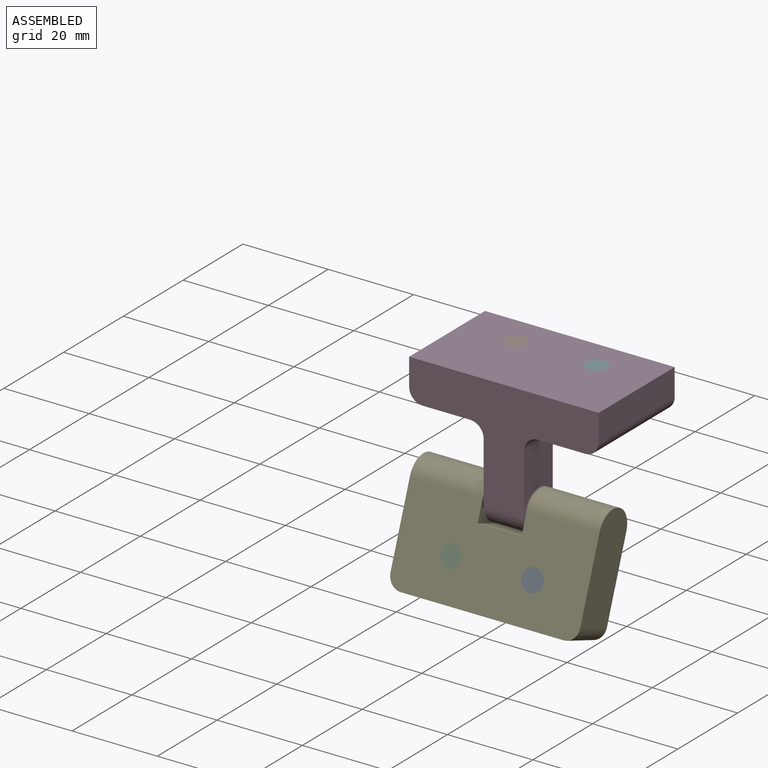
[diagram: assembled view]
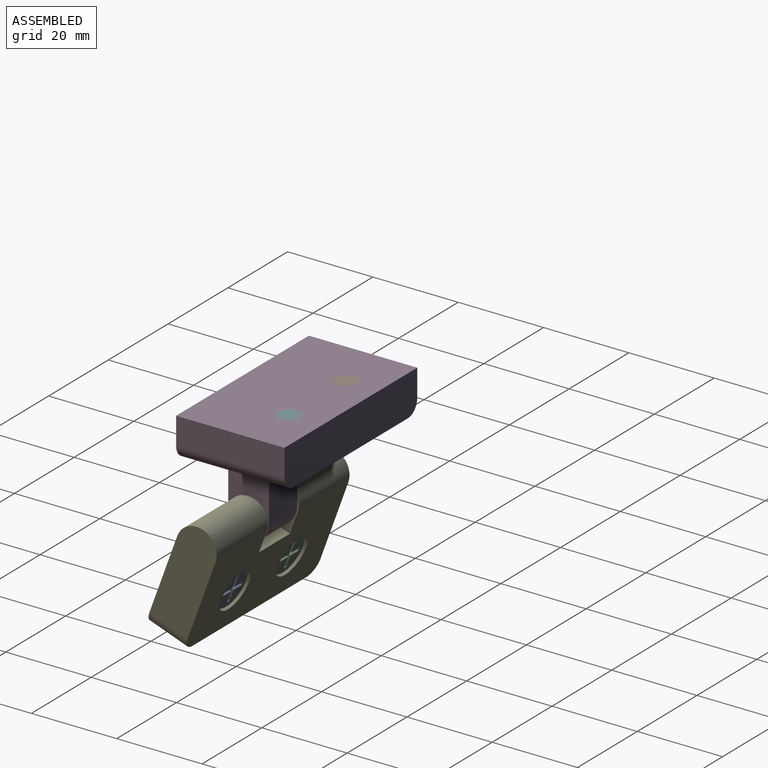
[diagram: assembled view, second angle]
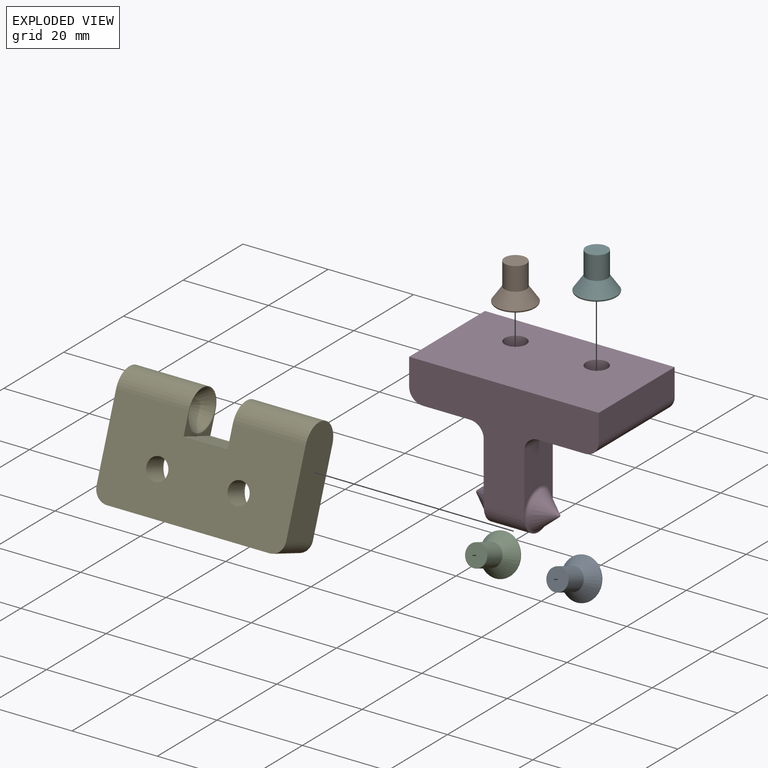
[diagram: exploded view]
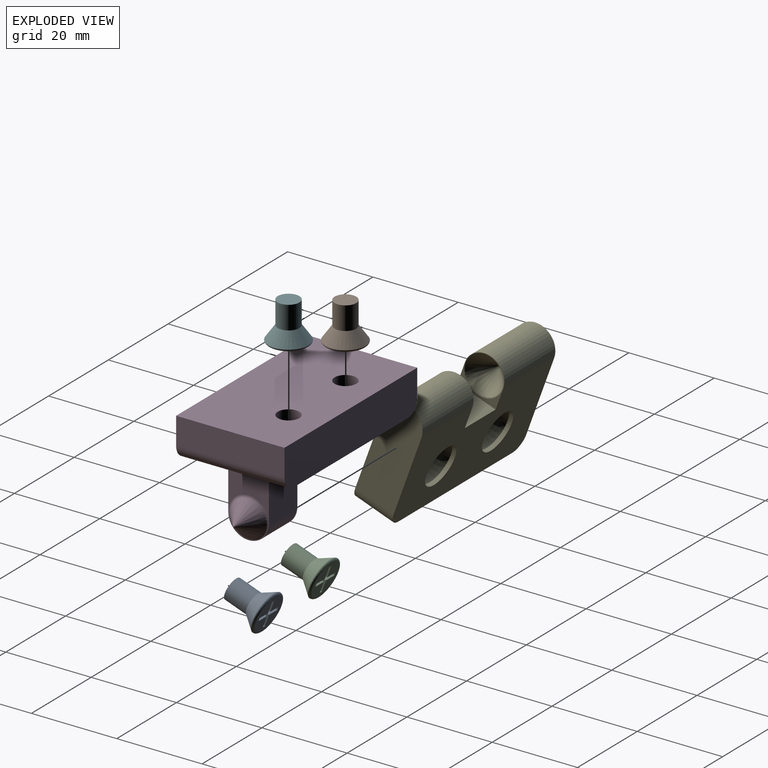
[diagram: exploded view, second angle]
ASSEMBLY  parts=6 mates=5
PART A: 18 faces, bbox 10.2x10.2x9 mm
  f0: plane 8.38x8.38mm, normal (0,0,1), area 46.1mm2, adj f4,f5,f6,f7,f8,f9,f10,f11
  f1: plane 5.08x5.08mm, normal (0,0,-1), area 20.3mm2, adj f2
  f2: cylinder r=2.54mm len=5.43mm, axis (0,0,-1), area 86.6mm2, adj f1,f3
  f3: cone r=4.7mm half-angle=35deg, axis (0,0,1), area 85.6mm2, adj f2,f4
  f4: torus R=4.19mm, axis (0,0,-1), area 22.6mm2, adj f0,f3
  f5: plane 0.79x0.76mm, normal (0,1,0), area 0.6mm2, adj f0,f6,f16,f17
  f6: plane 2.79x0.79mm, normal (-1,0,0), area 2.2mm2, adj f0,f5,f7,f17
  f7: plane 2.79x0.79mm, normal (0,1,0), area 2.2mm2, adj f0,f6,f8,f17
  f8: plane 0.79x0.76mm, normal (-1,0,0), area 0.6mm2, adj f0,f7,f9,f17
  f9: plane 2.79x0.79mm, normal (0,-1,0), area 2.2mm2, adj f0,f8,f10,f17
  f10: plane 2.79x0.79mm, normal (-1,0,0), area 2.2mm2, adj f0,f9,f11,f17
  f11: plane 0.79x0.76mm, normal (0,-1,0), area 0.6mm2, adj f0,f10,f12,f17
  f12: plane 2.79x0.79mm, normal (1,0,0), area 2.2mm2, adj f0,f11,f13,f17
  f13: plane 2.79x0.79mm, normal (0,-1,0), area 2.2mm2, adj f0,f12,f14,f17
  f14: plane 0.79x0.76mm, normal (1,0,0), area 0.6mm2, adj f0,f13,f15,f17
  f15: plane 2.79x0.79mm, normal (0,1,0), area 2.2mm2, adj f0,f14,f16,f17
  f16: plane 2.79x0.79mm, normal (1,0,0), area 2.2mm2, adj f0,f5,f15,f17
  f17: plane 6.35x6.35mm, normal (0,0,1), area 9.1mm2, adj f5,f6,f7,f8,f9,f10,f11,f12
PART B: same geometry as A
PART C: same geometry as A
PART D: 26 faces, bbox 32.8x44.5x26.4 mm
  f0: plane 17.46x15.88mm, normal (0,0,1), area 170.7mm2, adj f1,f2,f3,f6,f22,f23
  f1: plane 14.29x9.53mm, normal (0,1,0), area 100.5mm2, adj f0,f5,f21,f22
  f2: plane 14.29x9.53mm, normal (0,-1,0), area 100.5mm2, adj f0,f5,f16,f23
  f3: cylinder r=4.76mm len=9.53mm, axis (0,-1,0), area 142.5mm2, adj f0,f5,f16,f21
  f4: plane 44.45x25.4mm, normal (-1,0,0), area 1088.5mm2, adj f5,f7,f8,f9,f10,f13
  f5: plane 44.45x26.99mm, normal (0,0,-1), area 589.7mm2, adj f1,f2,f3,f4,f6,f8,f9,f22
  f6: plane 38.1x25.4mm, normal (1,0,0), area 677.8mm2, adj f0,f5,f7,f12,f15,f22,f23,f24
  f7: plane 44.45x9.53mm, normal (0,0,1), area 419.1mm2, adj f4,f6,f8,f9,f24,f25
  f8: plane 25.4x6.35mm, normal (0,-1,0), area 161.3mm2, adj f4,f5,f7,f25
  f9: plane 25.4x6.35mm, normal (0,1,0), area 161.3mm2, adj f4,f5,f7,f24
  f10: cylinder r=2.54mm len=5.43mm, axis (1,0,0), area 86.6mm2, adj f4,f11
  f11: cone r=4.7mm half-angle=35deg, axis (1,0,0), area 85.6mm2, adj f10,f12
  f12: cylinder r=4.7mm len=9.4mm, axis (1,0,0), area 30mm2, adj f6,f11
  f13: cylinder r=2.54mm len=5.43mm, axis (1,0,0), area 86.6mm2, adj f4,f14
  f14: cone r=4.7mm half-angle=35deg, axis (1,0,0), area 85.6mm2, adj f13,f15
  f15: cylinder r=4.7mm len=9.4mm, axis (1,0,0), area 30mm2, adj f6,f14
  f16: torus R=4.76mm, axis (0,1,0), area 19.3mm2, adj f2,f3,f17
  f17: cone r=4.15mm half-angle=40deg, axis (0,1,0), area 83.9mm2, adj f16,f18
  f18: sphere r=0.4mm, area 0.4mm2, adj f17
  f19: sphere r=0.4mm, area 0.4mm2, adj f20
  f20: cone r=4.15mm half-angle=40deg, axis (0,-1,0), area 83.9mm2, adj f19,f21
  f21: torus R=4.76mm, axis (0,1,0), area 19.3mm2, adj f1,f3,f20
  f22: cylinder r=3.17mm len=9.53mm, axis (0,0,1), area 47.5mm2, adj f0,f1,f5,f6
  f23: cylinder r=3.17mm len=9.53mm, axis (0,0,-1), area 47.5mm2, adj f0,f2,f5,f6
  f24: cylinder r=3.17mm len=25.4mm, axis (0,0,1), area 126.7mm2, adj f5,f6,f7,f9
  f25: cylinder r=3.17mm len=25.4mm, axis (0,0,-1), area 126.7mm2, adj f5,f6,f7,f8
PART E: 24 faces, bbox 27.7x44.5x10.9 mm
  f0: cylinder r=4.76mm len=17.07mm, axis (0,1,0), area 255.3mm2, adj f1,f2,f6,f18
  f1: plane 44.45x22.23mm, normal (0,0,-1), area 889.8mm2, adj f0,f3,f4,f5,f6,f7,f8,f9
  f2: plane 44.45x22.23mm, normal (0,0,1), area 791.6mm2, adj f0,f3,f4,f5,f6,f7,f8,f9
  f3: cylinder r=4.76mm len=17.07mm, axis (0,1,0), area 255.3mm2, adj f1,f2,f5,f19
  f4: plane 38.1x9.53mm, normal (1,0,0), area 362.9mm2, adj f1,f2,f22,f23
  f5: plane 23.81x9.53mm, normal (0,-1,0), area 217.1mm2, adj f1,f2,f3,f23
  f6: plane 23.81x9.53mm, normal (0,1,0), area 217.1mm2, adj f0,f1,f2,f22
  f7: plane 10.32x9.53mm, normal (-1,0,0), area 98.3mm2, adj f1,f2,f8,f9
  f8: plane 9.53x5.16mm, normal (0,1,0), area 13.5mm2, adj f1,f2,f7,f19
  f9: plane 9.53x5.16mm, normal (0,-1,0), area 13.5mm2, adj f1,f2,f7,f18
  f10: cylinder r=2.54mm len=5.43mm, axis (0,0,1), area 86.6mm2, adj f1,f11
  f11: cone r=4.7mm half-angle=35deg, axis (0,0,1), area 85.6mm2, adj f10,f12
  f12: cylinder r=4.7mm len=9.4mm, axis (0,0,1), area 30mm2, adj f2,f11
  f13: cylinder r=2.54mm len=5.43mm, axis (0,0,1), area 86.6mm2, adj f1,f14
  f14: cone r=4.7mm half-angle=35deg, axis (0,0,1), area 85.6mm2, adj f13,f15
  f15: cylinder r=4.7mm len=9.4mm, axis (0,0,1), area 30mm2, adj f2,f14
  f16: sphere r=0.79mm, area 1.4mm2, adj f17
  f17: cone r=4.46mm half-angle=40deg, axis (0,-1,0), area 95.3mm2, adj f16,f18
  f18: torus R=4.76mm, axis (0,-1,0), area 10mm2, adj f0,f9,f17
  f19: torus R=4.76mm, axis (0,-1,0), area 10mm2, adj f3,f8,f20
  f20: cone r=4.46mm half-angle=40deg, axis (0,1,0), area 95.3mm2, adj f19,f21
  f21: sphere r=0.79mm, area 1.4mm2, adj f20
  f22: cylinder r=3.17mm len=9.53mm, axis (0,0,1), area 47.5mm2, adj f1,f2,f4,f6
  f23: cylinder r=3.17mm len=9.53mm, axis (0,0,-1), area 47.5mm2, adj f1,f2,f4,f5
PART F: same geometry as A
PLACE A rot(axis=(-1,0,0),110deg) t=(-8.25,-16.58,-37.29)mm
PLACE B rot(axis=(1,0,0),180deg) t=(-27.3,4.94,0)mm
PLACE C rot(axis=(-1,0,0),110deg) t=(-27.3,-16.58,-37.29)mm
PLACE D rot(axis=(-0.58,0.58,0.58),120deg) t=(0,-7.76,-26.99)mm
PLACE E rot(axis=(-0.63,0.63,0.44),132.1deg) t=(0,-7.76,-26.99)mm
PLACE F rot(axis=(1,0,0),180deg) t=(-8.26,4.94,0)mm
MATE fastened D.f13 <-> F.f2  axis (0,0,1) through (9.52,4.94,0)mm
MATE revolute E.f0 <-> D.f16  axis (1,0,0) through (-5.16,-7.76,-26.99)mm
MATE fastened B.f2 <-> D.f11  axis (0,0,1) through (-9.52,4.94,0)mm
MATE fastened A.f2 <-> E.f10  axis (0,-0.94,0.34) through (9.53,-16.58,-37.29)mm
MATE fastened E.f13 <-> C.f2  axis (0,-0.94,0.34) through (-9.52,-16.58,-37.29)mm
